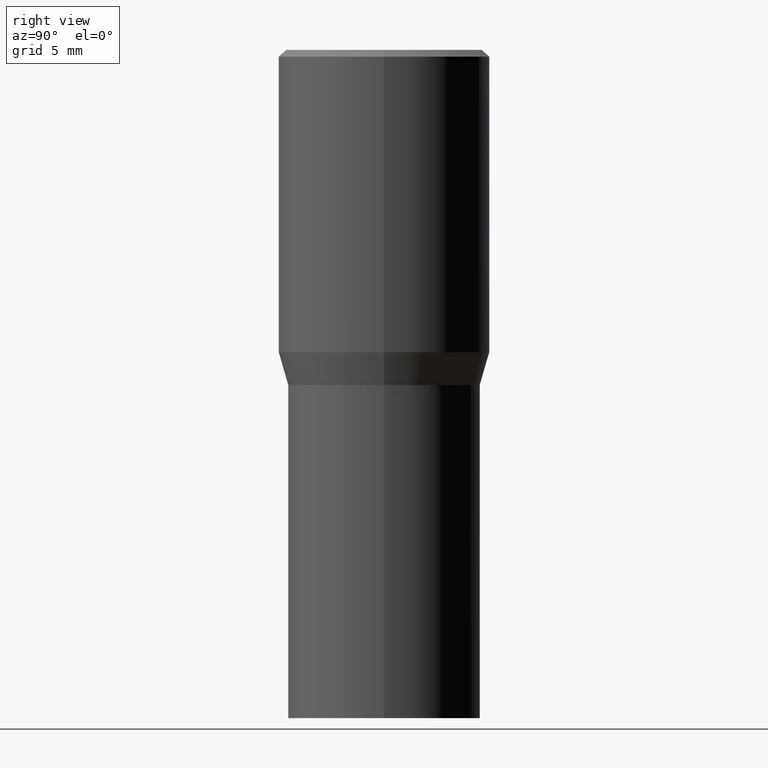
[diagram: clean part render]
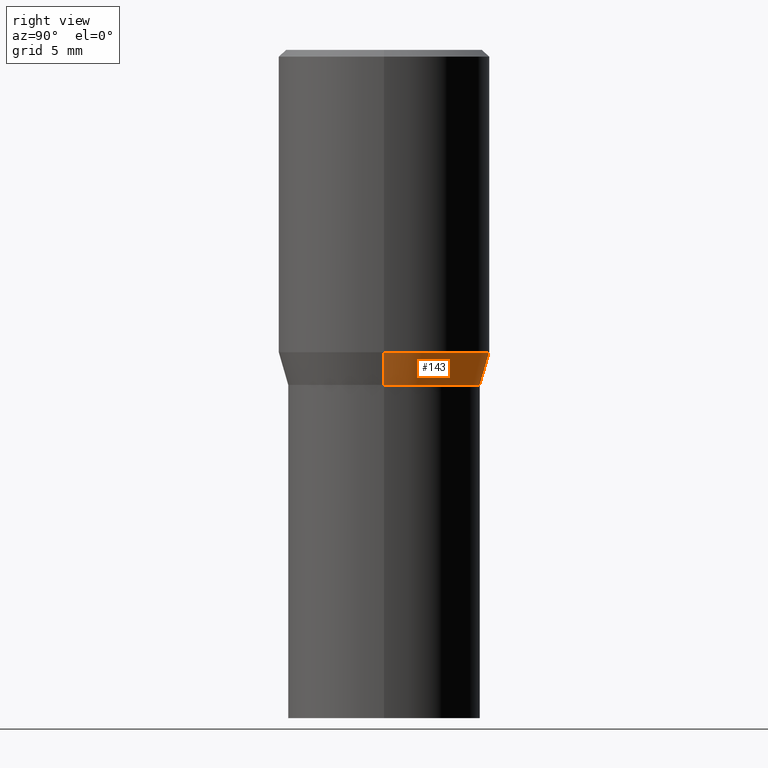
[diagram: same view with one face highlighted and labeled with its STEP entity id]
A machine part, right view. The second image highlights one B-rep face of the part: STEP entity #143.
In plain terms, the highlighted conical surface has half-angle 15 deg.
Its self-contained STEP definition (entity closure, byte-faithful):
#4 = CARTESIAN_POINT ( 'NONE',  ( 0.2165500000000000203, -4.137754534663007109E-15, -0.7520000000000001128 ) ) ;
#8 = CARTESIAN_POINT ( 'NONE',  ( 1.659654580432621677E-29, -2.369546886817807077E-15, -0.6786652016312719748 ) ) ;
#20 = CARTESIAN_POINT ( 'NONE',  ( -0.2165500000000000203, -1.086913672521548598E-15, -0.7520000000000001128 ) ) ;
#27 = EDGE_CURVE ( 'NONE', #310, #133, #130, .T. ) ;
#50 = ORIENTED_EDGE ( 'NONE', *, *, #27, .F. ) ;
#78 = DIRECTION ( 'NONE',  ( 1.000000000000000000, -6.982962677686266711E-15, 0.000000000000000000 ) ) ;
#85 = CARTESIAN_POINT ( 'NONE',  ( 0.2165500000000000203, -4.137754534663007109E-15, -0.7520000000000001128 ) ) ;
#93 = DIRECTION ( 'NONE',  ( 1.000000000000000000, -6.982962677686266711E-15, 0.000000000000000000 ) ) ;
#105 = FACE_OUTER_BOUND ( 'NONE', #176, .T. ) ;
#108 = VECTOR ( 'NONE', #260, 39.37007874015748143 ) ;
#120 = CIRCLE ( 'NONE', #333, 0.2165500000000000203 ) ;
#130 = LINE ( 'NONE', #4, #323 ) ;
#133 = VERTEX_POINT ( 'NONE', #275 ) ;
#143 = ADVANCED_FACE ( 'NONE', ( #105 ), #427, .T. ) ;
#158 = ORIENTED_EDGE ( 'NONE', *, *, #159, .T. ) ;
#159 = EDGE_CURVE ( 'NONE', #310, #387, #120, .T. ) ;
#176 = EDGE_LOOP ( 'NONE', ( #158, #253, #447, #50 ) ) ;
#188 = DIRECTION ( 'NONE',  ( 1.000000000000000000, -6.982962677686266711E-15, 0.000000000000000000 ) ) ;
#207 = DIRECTION ( 'NONE',  ( 0.2588190451025218497, 1.565188264969618221E-15, 0.9659258262890679791 ) ) ;
#224 = LINE ( 'NONE', #20, #108 ) ;
#241 = CARTESIAN_POINT ( 'NONE',  ( 1.838992542251222813E-29, -2.625593966810045497E-15, -0.7520000000000001128 ) ) ;
#253 = ORIENTED_EDGE ( 'NONE', *, *, #367, .T. ) ;
#260 = DIRECTION ( 'NONE',  ( -0.2588190451025218497, 5.211531920934553408E-15, 0.9659258262890679791 ) ) ;
#266 = CARTESIAN_POINT ( 'NONE',  ( -0.2361999999999999933, -6.912449449524502887E-16, -0.6786652016312719748 ) ) ;
#267 = AXIS2_PLACEMENT_3D ( 'NONE', #8, #371, #93 ) ;
#275 = CARTESIAN_POINT ( 'NONE',  ( 0.2361999999999999933, -4.018922671287303208E-15, -0.6786652016312719748 ) ) ;
#290 = DIRECTION ( 'NONE',  ( -2.445468806185136597E-29, 3.491481338843145583E-15, 1.000000000000000000 ) ) ;
#310 = VERTEX_POINT ( 'NONE', #85 ) ;
#323 = VECTOR ( 'NONE', #207, 39.37007874015748143 ) ;
#328 = DIRECTION ( 'NONE',  ( -2.445468806185136597E-29, 3.491481338843145583E-15, 1.000000000000000000 ) ) ;
#333 = AXIS2_PLACEMENT_3D ( 'NONE', #360, #290, #78 ) ;
#340 = CIRCLE ( 'NONE', #267, 0.2361999999999999933 ) ;
#348 = EDGE_CURVE ( 'NONE', #133, #391, #340, .T. ) ;
#360 = CARTESIAN_POINT ( 'NONE',  ( 1.838992542251222813E-29, -2.625593966810045497E-15, -0.7520000000000001128 ) ) ;
#367 = EDGE_CURVE ( 'NONE', #387, #391, #224, .T. ) ;
#371 = DIRECTION ( 'NONE',  ( -2.445468806185136597E-29, 3.491481338843145583E-15, 1.000000000000000000 ) ) ;
#387 = VERTEX_POINT ( 'NONE', #437 ) ;
#391 = VERTEX_POINT ( 'NONE', #266 ) ;
#427 = CONICAL_SURFACE ( 'NONE', #440, 0.2165500000000000203, 0.2617993877991505736 ) ;
#437 = CARTESIAN_POINT ( 'NONE',  ( -0.2165500000000000203, -8.890793087369993447E-16, -0.7520000000000001128 ) ) ;
#440 = AXIS2_PLACEMENT_3D ( 'NONE', #241, #328, #188 ) ;
#447 = ORIENTED_EDGE ( 'NONE', *, *, #348, .F. ) ;